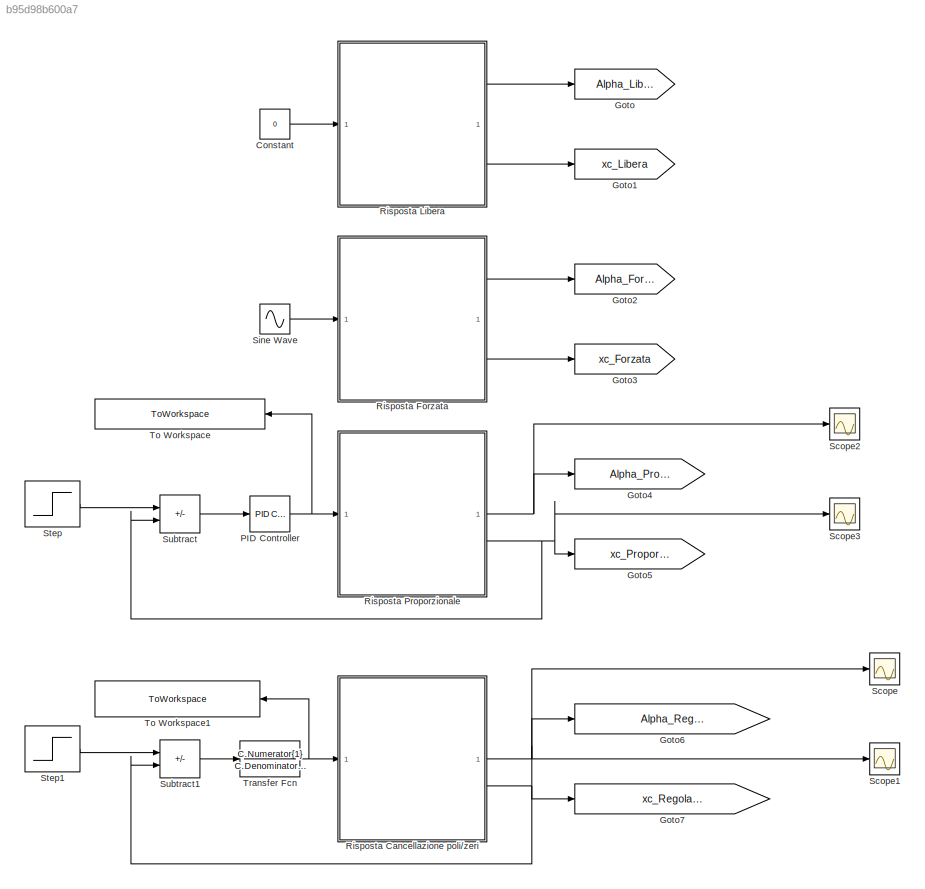
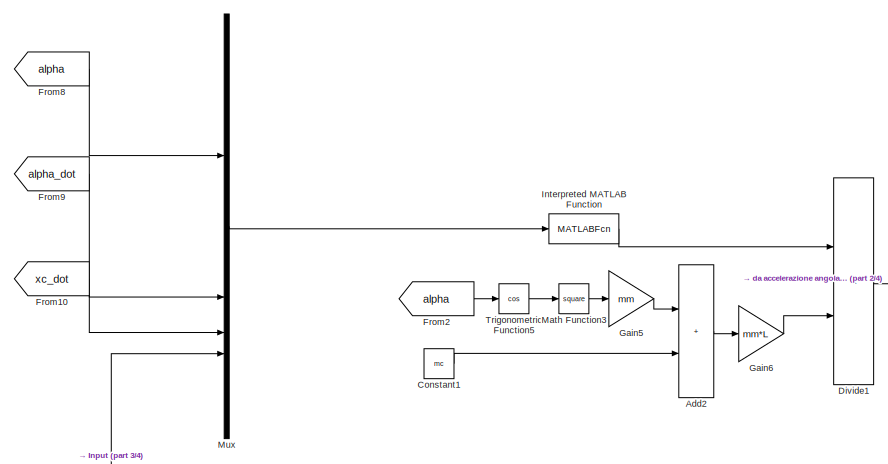
[diagram: Risposta Cancellazione poli/zeri - part 1/4, top center region]
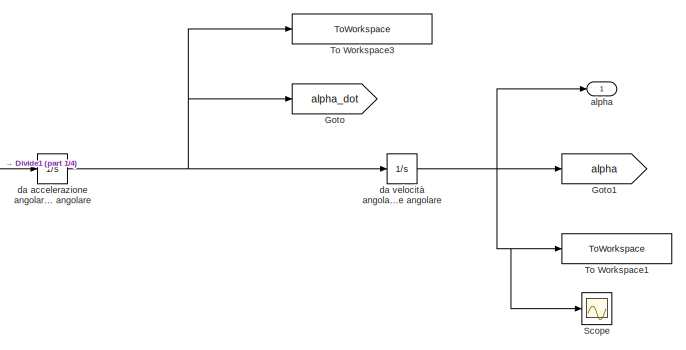
[diagram: Risposta Cancellazione poli/zeri - part 2/4, top right region]
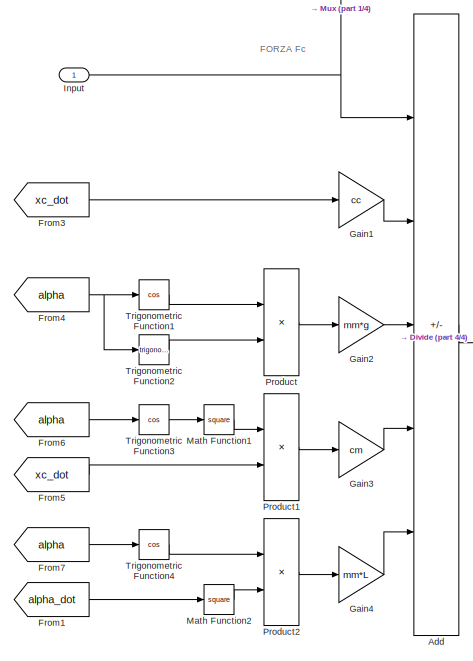
[diagram: Risposta Cancellazione poli/zeri - part 3/4, bottom left region]
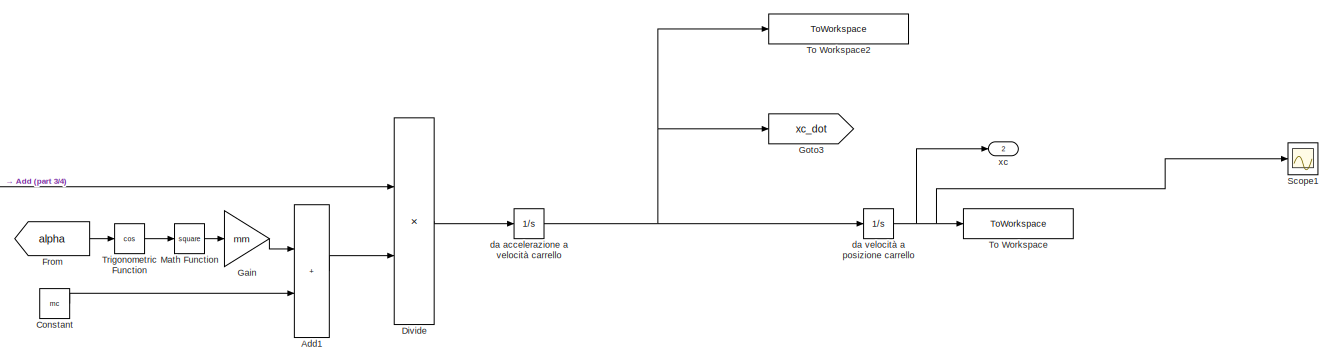
[diagram: Risposta Cancellazione poli/zeri - part 4/4, bottom center region]
MODEL slx_b95d98b600a7
KIND model
CONFIG AbsTol = auto
CONFIG EnableMultiTasking = on
CONFIG FixedStep = 1e-3
CONFIG MaxStep = auto
CONFIG MinStep = auto
CONFIG RelTol = 1e-3
CONFIG SampleTimeConstraint = Unconstrained
CONFIG SolverName = FixedStepAuto
CONFIG StartTime = 0
CONFIG StopTime = 30
BLOCK [Constant] Constant
  Value = 0
BLOCK [Goto] Goto
  GotoTag = Alpha_Libera
BLOCK [Goto] Goto1
  GotoTag = xc_Libera
BLOCK [Goto] Goto2
  GotoTag = Alpha_Forzata
BLOCK [Goto] Goto3
  GotoTag = xc_Forzata
BLOCK [Goto] Goto4
  GotoTag = Alpha_Proporzionale
BLOCK [Goto] Goto5
  GotoTag = xc_Proporzionale
BLOCK [Goto] Goto6
  GotoTag = Alpha_Regolatore_Dinamico
BLOCK [Goto] Goto7
  GotoTag = xc_Regolatore_Dinamico
BLOCK [Reference] PID Controller  REF=slpidlib/PID Controller
  LibrarySourceBlock = simulink/Continuous/PID Controller
  SourceBlock = slpidlib/PID Controller
  SourceType = PID 1dof
BLOCK [SubSystem] Risposta Cancellazione poli//zeri
BLOCK [Sum] Risposta Cancellazione poli//zeri/Add
  IconShape = rectangular
  Inputs = +-+-+
BLOCK [Sum] Risposta Cancellazione poli//zeri/Add1
  IconShape = rectangular
BLOCK [Sum] Risposta Cancellazione poli//zeri/Add2
  IconShape = rectangular
BLOCK [Constant] Risposta Cancellazione poli//zeri/Constant
  Value = mc
BLOCK [Constant] Risposta Cancellazione poli//zeri/Constant1
  Value = mc
BLOCK [Product] Risposta Cancellazione poli//zeri/Divide
  Inputs = */
BLOCK [Product] Risposta Cancellazione poli//zeri/Divide1
  Inputs = */
BLOCK [From] Risposta Cancellazione poli//zeri/From
  GotoTag = alpha
BLOCK [From] Risposta Cancellazione poli//zeri/From1
  GotoTag = alpha_dot
BLOCK [From] Risposta Cancellazione poli//zeri/From10
  GotoTag = xc_dot
BLOCK [From] Risposta Cancellazione poli//zeri/From2
  GotoTag = alpha
BLOCK [From] Risposta Cancellazione poli//zeri/From3
  GotoTag = xc_dot
BLOCK [From] Risposta Cancellazione poli//zeri/From4
  GotoTag = alpha
BLOCK [From] Risposta Cancellazione poli//zeri/From5
  GotoTag = xc_dot
BLOCK [From] Risposta Cancellazione poli//zeri/From6
  GotoTag = alpha
BLOCK [From] Risposta Cancellazione poli//zeri/From7
  GotoTag = alpha
BLOCK [From] Risposta Cancellazione poli//zeri/From8
  GotoTag = alpha
BLOCK [From] Risposta Cancellazione poli//zeri/From9
  GotoTag = alpha_dot
BLOCK [Gain] Risposta Cancellazione poli//zeri/Gain
  Gain = mm
BLOCK [Gain] Risposta Cancellazione poli//zeri/Gain1
  Gain = cc
BLOCK [Gain] Risposta Cancellazione poli//zeri/Gain2
  Gain = mm*g
BLOCK [Gain] Risposta Cancellazione poli//zeri/Gain3
  Gain = cm
BLOCK [Gain] Risposta Cancellazione poli//zeri/Gain4
  Gain = mm*L
BLOCK [Gain] Risposta Cancellazione poli//zeri/Gain5
  Gain = mm
BLOCK [Gain] Risposta Cancellazione poli//zeri/Gain6
  Gain = mm*L
BLOCK [Goto] Risposta Cancellazione poli//zeri/Goto
  GotoTag = alpha_dot
BLOCK [Goto] Risposta Cancellazione poli//zeri/Goto1
  GotoTag = alpha
BLOCK [Goto] Risposta Cancellazione poli//zeri/Goto3
  GotoTag = xc_dot
BLOCK [Inport] Risposta Cancellazione poli//zeri/Input
BLOCK [MATLABFcn] Risposta Cancellazione poli//zeri/Interpreted MATLAB Function
  MATLABFcn = mc*cm*sin(u(1))*u(3) - mm*cc*sin(u(1))*u(3) + (mm^2)*L*sin(u(1))*cos(u(1))*(u(2)^2) + mm*sin(u(1))*u(4) + (mm^2)*g*cos(u(1)) + mc*mm*g*cos(u(1)) - mc*cm*L*u(2) - mm*cm*L*u(2)*((cos(u(1)))^2)  <repeated x4 — deduplicated; at blocks: Interpreted MATLAB Function>
  OutputDimensions = 1
BLOCK [Math] Risposta Cancellazione poli//zeri/Math Function
  Operator = square
  SignedPower = on
BLOCK [Math] Risposta Cancellazione poli//zeri/Math Function1
  Operator = square
  SignedPower = on
BLOCK [Math] Risposta Cancellazione poli//zeri/Math Function2
  Operator = square
  SignedPower = on
BLOCK [Math] Risposta Cancellazione poli//zeri/Math Function3
  Operator = square
  SignedPower = on
BLOCK [Mux] Risposta Cancellazione poli//zeri/Mux
  DisplayOption = bar
BLOCK [Product] Risposta Cancellazione poli//zeri/Product
BLOCK [Product] Risposta Cancellazione poli//zeri/Product1
BLOCK [Product] Risposta Cancellazione poli//zeri/Product2
BLOCK [Scope] Risposta Cancellazione poli//zeri/Scope
  Floating = off
  NumInputPorts = 1
  ScopeSpecificationString = Simulink.scopes.TimeScopeBlockCfg('CurrentConfiguration', extmgr.ConfigurationSet(extmgr.Configuration('Core','General UI',true),extmgr.Configuration('Core','Source UI',true),extmgr.Configuration('Sources','WiredSimulink',true),extmgr.Configuration('Visuals','Time Domain',true,'SerializedDisplays',{struct('MinYLimReal','0.37443','MaxYLimReal','2.766','YLabelReal','','MinYLimMag','0.37443','MaxYLim...<+1406ch>  <repeated x4 — deduplicated; at blocks: Scope>
BLOCK [Scope] Risposta Cancellazione poli//zeri/Scope1
  Floating = off
  NumInputPorts = 1
  ScopeSpecificationString = Simulink.scopes.TimeScopeBlockCfg('CurrentConfiguration', extmgr.ConfigurationSet(extmgr.Configuration('Core','General UI',true),extmgr.Configuration('Core','Source UI',true),extmgr.Configuration('Sources','WiredSimulink',true,'DataLoggingVariableName','ScopeData1'),extmgr.Configuration('Visuals','Time Domain',true,'SerializedDisplays',{struct('MinYLimReal','-0.19058','MaxYLimReal','1.71524','YLab...<+1433ch>  <repeated x4 — deduplicated; at blocks: Scope1>
BLOCK [ToWorkspace] Risposta Cancellazione poli//zeri/To Workspace
  FixptAsFi = on
  MaxDataPoints = inf
  SampleTime = -1
  VariableName = xc_simulink_Dinamico
BLOCK [ToWorkspace] Risposta Cancellazione poli//zeri/To Workspace1
  FixptAsFi = on
  MaxDataPoints = inf
  SampleTime = -1
  VariableName = alpha_simulink_Dinamico
BLOCK [ToWorkspace] Risposta Cancellazione poli//zeri/To Workspace2
  FixptAsFi = on
  MaxDataPoints = inf
  SampleTime = -1
  VariableName = xc_dot_simulink_Dinamico
BLOCK [ToWorkspace] Risposta Cancellazione poli//zeri/To Workspace3
  FixptAsFi = on
  MaxDataPoints = inf
  SampleTime = -1
  VariableName = alpha_dot_simulink_Dinamico
BLOCK [Trigonometry] Risposta Cancellazione poli//zeri/Trigonometric Function
  Operator = cos
BLOCK [Trigonometry] Risposta Cancellazione poli//zeri/Trigonometric Function1
  Operator = cos
BLOCK [Trigonometry] Risposta Cancellazione poli//zeri/Trigonometric Function2
BLOCK [Trigonometry] Risposta Cancellazione poli//zeri/Trigonometric Function3
  Operator = cos
BLOCK [Trigonometry] Risposta Cancellazione poli//zeri/Trigonometric Function4
  Operator = cos
BLOCK [Trigonometry] Risposta Cancellazione poli//zeri/Trigonometric Function5
  Operator = cos
BLOCK [Outport] Risposta Cancellazione poli//zeri/alpha
BLOCK [Integrator] Risposta Cancellazione poli//zeri/da accelerazione a velocità carrello
  InitialCondition = xc_dot_0
BLOCK [Integrator] Risposta Cancellazione poli//zeri/da accelerazione angolare a velocità angolare
  InitialCondition = alpha_dot_0
BLOCK [Integrator] Risposta Cancellazione poli//zeri/da velocità a posizione carrello
  InitialCondition = xc_0
BLOCK [Integrator] Risposta Cancellazione poli//zeri/da velocità angolare a posizione angolare
  InitialCondition = alpha_0
BLOCK [Outport] Risposta Cancellazione poli//zeri/xc
  Port = 2
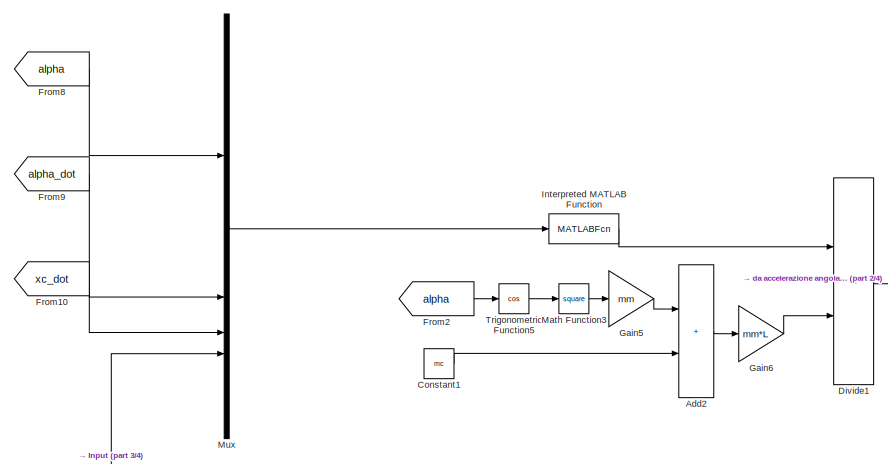
[diagram: Risposta Forzata - part 1/4, top center region]
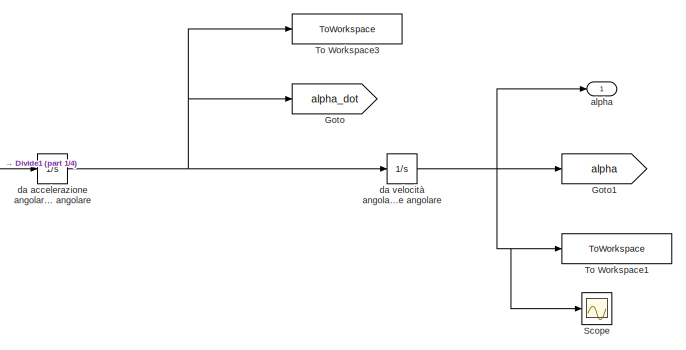
[diagram: Risposta Forzata - part 2/4, top right region]
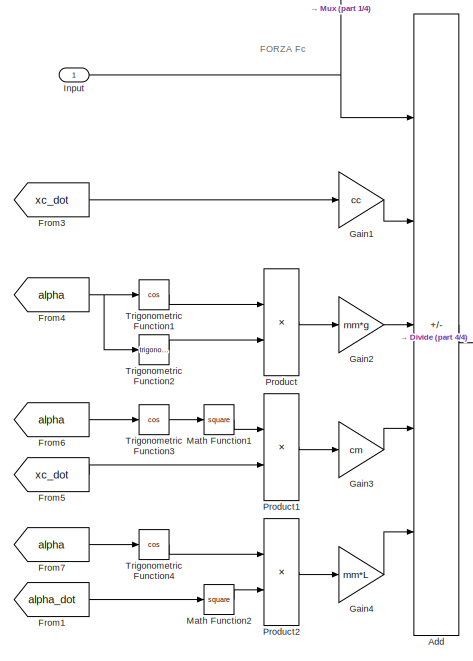
[diagram: Risposta Forzata - part 3/4, bottom left region]
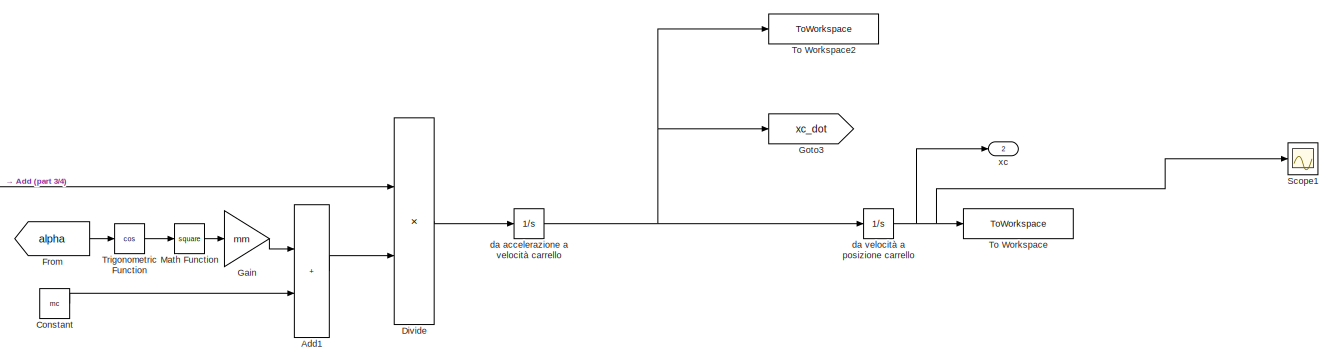
[diagram: Risposta Forzata - part 4/4, bottom center region]
BLOCK [SubSystem] Risposta Forzata
BLOCK [Sum] Risposta Forzata/Add
  IconShape = rectangular
  Inputs = +-+-+
BLOCK [Sum] Risposta Forzata/Add1
  IconShape = rectangular
BLOCK [Sum] Risposta Forzata/Add2
  IconShape = rectangular
BLOCK [Constant] Risposta Forzata/Constant
  Value = mc
BLOCK [Constant] Risposta Forzata/Constant1
  Value = mc
BLOCK [Product] Risposta Forzata/Divide
  Inputs = */
BLOCK [Product] Risposta Forzata/Divide1
  Inputs = */
BLOCK [From] Risposta Forzata/From
  GotoTag = alpha
BLOCK [From] Risposta Forzata/From1
  GotoTag = alpha_dot
BLOCK [From] Risposta Forzata/From10
  GotoTag = xc_dot
BLOCK [From] Risposta Forzata/From2
  GotoTag = alpha
BLOCK [From] Risposta Forzata/From3
  GotoTag = xc_dot
BLOCK [From] Risposta Forzata/From4
  GotoTag = alpha
BLOCK [From] Risposta Forzata/From5
  GotoTag = xc_dot
BLOCK [From] Risposta Forzata/From6
  GotoTag = alpha
BLOCK [From] Risposta Forzata/From7
  GotoTag = alpha
BLOCK [From] Risposta Forzata/From8
  GotoTag = alpha
BLOCK [From] Risposta Forzata/From9
  GotoTag = alpha_dot
BLOCK [Gain] Risposta Forzata/Gain
  Gain = mm
BLOCK [Gain] Risposta Forzata/Gain1
  Gain = cc
BLOCK [Gain] Risposta Forzata/Gain2
  Gain = mm*g
BLOCK [Gain] Risposta Forzata/Gain3
  Gain = cm
BLOCK [Gain] Risposta Forzata/Gain4
  Gain = mm*L
BLOCK [Gain] Risposta Forzata/Gain5
  Gain = mm
BLOCK [Gain] Risposta Forzata/Gain6
  Gain = mm*L
BLOCK [Goto] Risposta Forzata/Goto
  GotoTag = alpha_dot
BLOCK [Goto] Risposta Forzata/Goto1
  GotoTag = alpha
BLOCK [Goto] Risposta Forzata/Goto3
  GotoTag = xc_dot
BLOCK [Inport] Risposta Forzata/Input
BLOCK [MATLABFcn] Risposta Forzata/Interpreted MATLAB Function
  OutputDimensions = 1
BLOCK [Math] Risposta Forzata/Math Function
  Operator = square
  SignedPower = on
BLOCK [Math] Risposta Forzata/Math Function1
  Operator = square
  SignedPower = on
BLOCK [Math] Risposta Forzata/Math Function2
  Operator = square
  SignedPower = on
BLOCK [Math] Risposta Forzata/Math Function3
  Operator = square
  SignedPower = on
BLOCK [Mux] Risposta Forzata/Mux
  DisplayOption = bar
BLOCK [Product] Risposta Forzata/Product
BLOCK [Product] Risposta Forzata/Product1
BLOCK [Product] Risposta Forzata/Product2
BLOCK [Scope] Risposta Forzata/Scope
  Floating = off
  NumInputPorts = 1
BLOCK [Scope] Risposta Forzata/Scope1
  Floating = off
  NumInputPorts = 1
BLOCK [ToWorkspace] Risposta Forzata/To Workspace
  FixptAsFi = on
  MaxDataPoints = inf
  SampleTime = -1
  VariableName = xc_simulink_Forzata
BLOCK [ToWorkspace] Risposta Forzata/To Workspace1
  FixptAsFi = on
  MaxDataPoints = inf
  SampleTime = -1
  VariableName = alpha_simulink_Forzata
BLOCK [ToWorkspace] Risposta Forzata/To Workspace2
  FixptAsFi = on
  MaxDataPoints = inf
  SampleTime = -1
  VariableName = xc_dot_simulink_Forzata
BLOCK [ToWorkspace] Risposta Forzata/To Workspace3
  FixptAsFi = on
  MaxDataPoints = inf
  SampleTime = -1
  VariableName = alpha_dot_simulink_Forzata
BLOCK [Trigonometry] Risposta Forzata/Trigonometric Function
  Operator = cos
BLOCK [Trigonometry] Risposta Forzata/Trigonometric Function1
  Operator = cos
BLOCK [Trigonometry] Risposta Forzata/Trigonometric Function2
BLOCK [Trigonometry] Risposta Forzata/Trigonometric Function3
  Operator = cos
BLOCK [Trigonometry] Risposta Forzata/Trigonometric Function4
  Operator = cos
BLOCK [Trigonometry] Risposta Forzata/Trigonometric Function5
  Operator = cos
BLOCK [Outport] Risposta Forzata/alpha
BLOCK [Integrator] Risposta Forzata/da accelerazione a velocità carrello
  InitialCondition = xc_dot_0
BLOCK [Integrator] Risposta Forzata/da accelerazione angolare a velocità angolare
  InitialCondition = alpha_dot_0
BLOCK [Integrator] Risposta Forzata/da velocità a posizione carrello
  InitialCondition = xc_0
BLOCK [Integrator] Risposta Forzata/da velocità angolare a posizione angolare
  InitialCondition = alpha_0
BLOCK [Outport] Risposta Forzata/xc
  Port = 2
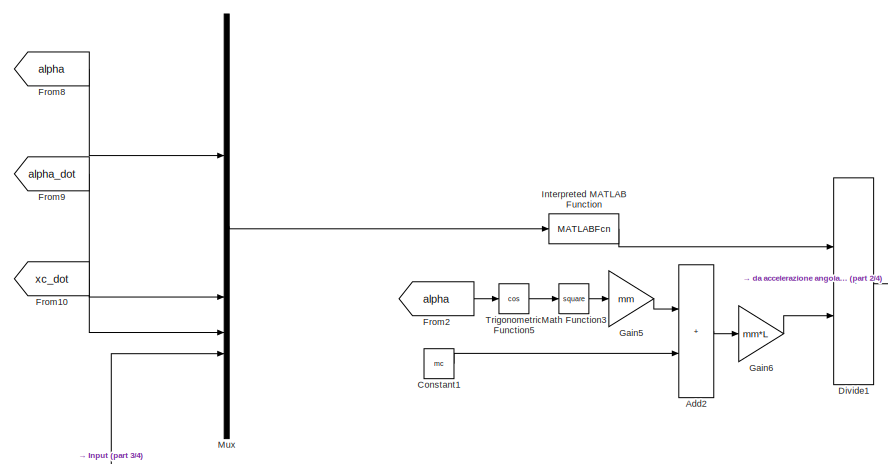
[diagram: Risposta Libera - part 1/4, top center region]
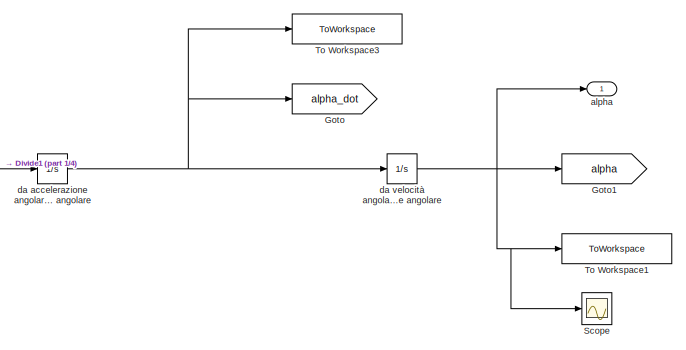
[diagram: Risposta Libera - part 2/4, top right region]
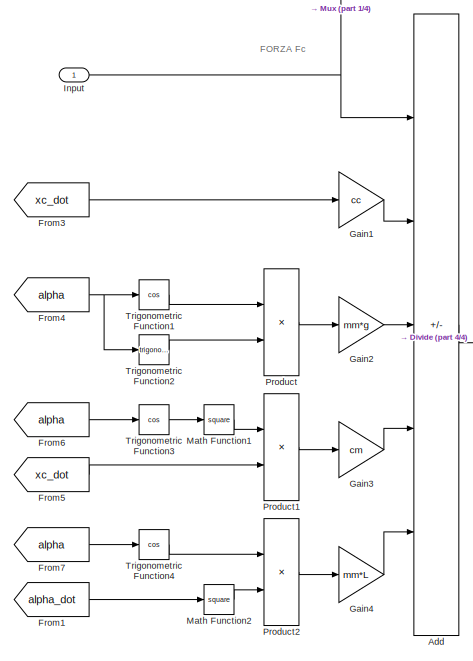
[diagram: Risposta Libera - part 3/4, bottom left region]
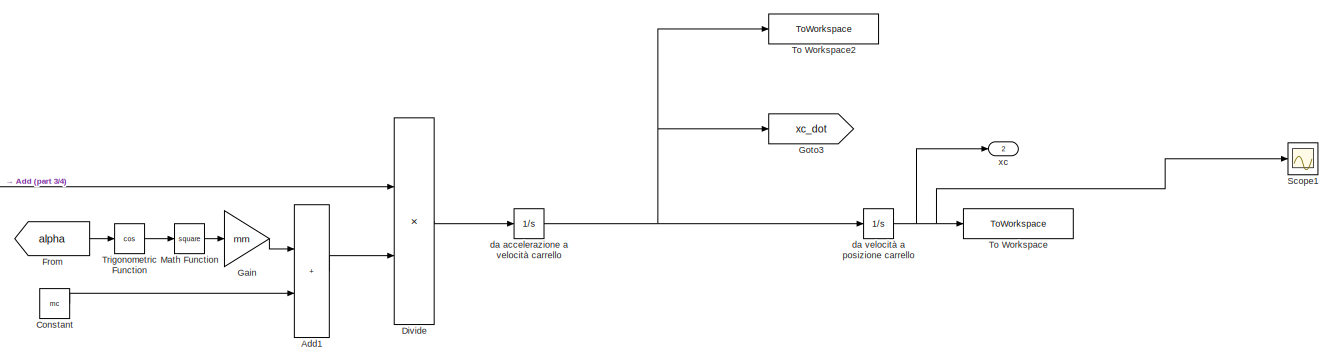
[diagram: Risposta Libera - part 4/4, bottom center region]
BLOCK [SubSystem] Risposta Libera
BLOCK [Sum] Risposta Libera/Add
  IconShape = rectangular
  Inputs = +-+-+
BLOCK [Sum] Risposta Libera/Add1
  IconShape = rectangular
BLOCK [Sum] Risposta Libera/Add2
  IconShape = rectangular
BLOCK [Constant] Risposta Libera/Constant
  Value = mc
BLOCK [Constant] Risposta Libera/Constant1
  Value = mc
BLOCK [Product] Risposta Libera/Divide
  Inputs = */
BLOCK [Product] Risposta Libera/Divide1
  Inputs = */
BLOCK [From] Risposta Libera/From
  GotoTag = alpha
BLOCK [From] Risposta Libera/From1
  GotoTag = alpha_dot
BLOCK [From] Risposta Libera/From10
  GotoTag = xc_dot
BLOCK [From] Risposta Libera/From2
  GotoTag = alpha
BLOCK [From] Risposta Libera/From3
  GotoTag = xc_dot
BLOCK [From] Risposta Libera/From4
  GotoTag = alpha
BLOCK [From] Risposta Libera/From5
  GotoTag = xc_dot
BLOCK [From] Risposta Libera/From6
  GotoTag = alpha
BLOCK [From] Risposta Libera/From7
  GotoTag = alpha
BLOCK [From] Risposta Libera/From8
  GotoTag = alpha
BLOCK [From] Risposta Libera/From9
  GotoTag = alpha_dot
BLOCK [Gain] Risposta Libera/Gain
  Gain = mm
BLOCK [Gain] Risposta Libera/Gain1
  Gain = cc
BLOCK [Gain] Risposta Libera/Gain2
  Gain = mm*g
BLOCK [Gain] Risposta Libera/Gain3
  Gain = cm
BLOCK [Gain] Risposta Libera/Gain4
  Gain = mm*L
BLOCK [Gain] Risposta Libera/Gain5
  Gain = mm
BLOCK [Gain] Risposta Libera/Gain6
  Gain = mm*L
BLOCK [Goto] Risposta Libera/Goto
  GotoTag = alpha_dot
BLOCK [Goto] Risposta Libera/Goto1
  GotoTag = alpha
BLOCK [Goto] Risposta Libera/Goto3
  GotoTag = xc_dot
BLOCK [Inport] Risposta Libera/Input
BLOCK [MATLABFcn] Risposta Libera/Interpreted MATLAB Function
  OutputDimensions = 1
BLOCK [Math] Risposta Libera/Math Function
  Operator = square
  SignedPower = on
BLOCK [Math] Risposta Libera/Math Function1
  Operator = square
  SignedPower = on
BLOCK [Math] Risposta Libera/Math Function2
  Operator = square
  SignedPower = on
BLOCK [Math] Risposta Libera/Math Function3
  Operator = square
  SignedPower = on
BLOCK [Mux] Risposta Libera/Mux
  DisplayOption = bar
BLOCK [Product] Risposta Libera/Product
BLOCK [Product] Risposta Libera/Product1
BLOCK [Product] Risposta Libera/Product2
BLOCK [Scope] Risposta Libera/Scope
  Floating = off
  NumInputPorts = 1
BLOCK [Scope] Risposta Libera/Scope1
  Floating = off
  NumInputPorts = 1
BLOCK [ToWorkspace] Risposta Libera/To Workspace
  FixptAsFi = on
  MaxDataPoints = inf
  SampleTime = -1
  VariableName = xc_simulink_libera
BLOCK [ToWorkspace] Risposta Libera/To Workspace1
  FixptAsFi = on
  MaxDataPoints = inf
  SampleTime = -1
  VariableName = alpha_simulink_libera
BLOCK [ToWorkspace] Risposta Libera/To Workspace2
  FixptAsFi = on
  MaxDataPoints = inf
  SampleTime = -1
  VariableName = xc_dot_simulink_libera
BLOCK [ToWorkspace] Risposta Libera/To Workspace3
  FixptAsFi = on
  MaxDataPoints = inf
  SampleTime = -1
  VariableName = alpha_dot_simulink_libera
BLOCK [Trigonometry] Risposta Libera/Trigonometric Function
  Operator = cos
BLOCK [Trigonometry] Risposta Libera/Trigonometric Function1
  Operator = cos
BLOCK [Trigonometry] Risposta Libera/Trigonometric Function2
BLOCK [Trigonometry] Risposta Libera/Trigonometric Function3
  Operator = cos
BLOCK [Trigonometry] Risposta Libera/Trigonometric Function4
  Operator = cos
BLOCK [Trigonometry] Risposta Libera/Trigonometric Function5
  Operator = cos
BLOCK [Outport] Risposta Libera/alpha
BLOCK [Integrator] Risposta Libera/da accelerazione a velocità carrello
  InitialCondition = xc_dot_0
BLOCK [Integrator] Risposta Libera/da accelerazione angolare a velocità angolare
  InitialCondition = alpha_dot_0
BLOCK [Integrator] Risposta Libera/da velocità a posizione carrello
  InitialCondition = xc_0
BLOCK [Integrator] Risposta Libera/da velocità angolare a posizione angolare
  InitialCondition = alpha_0
BLOCK [Outport] Risposta Libera/xc
  Port = 2
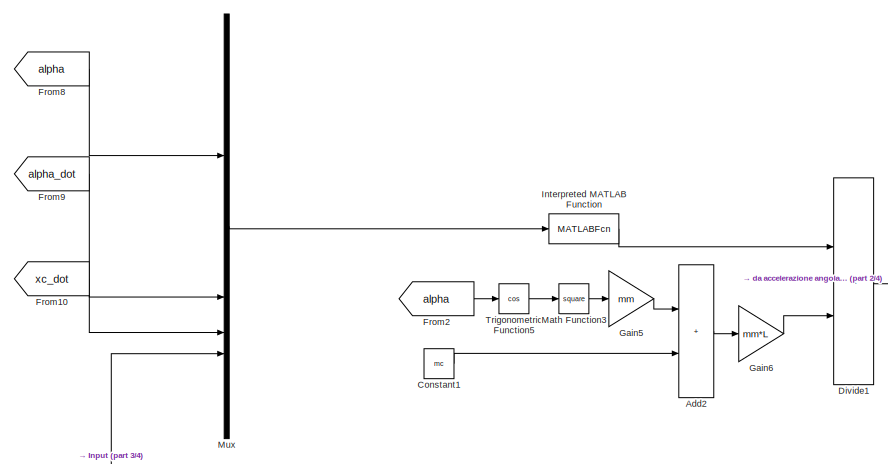
[diagram: Risposta Proporzionale - part 1/4, top center region]
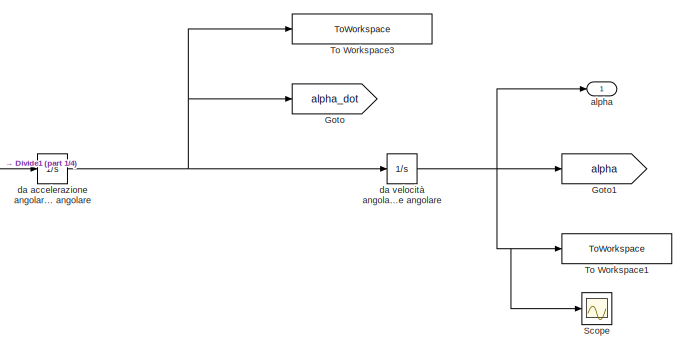
[diagram: Risposta Proporzionale - part 2/4, top right region]
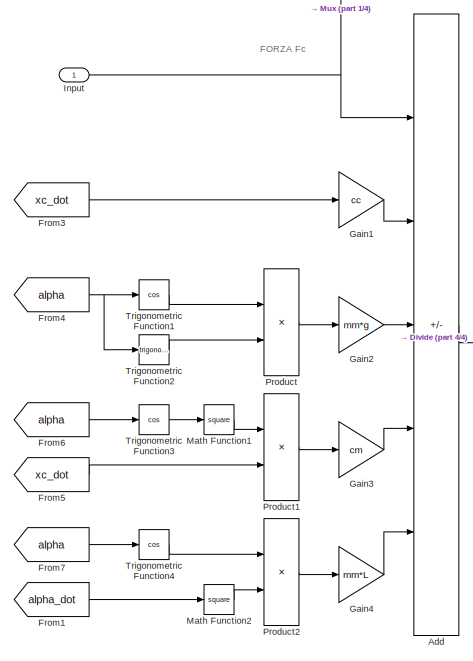
[diagram: Risposta Proporzionale - part 3/4, bottom left region]
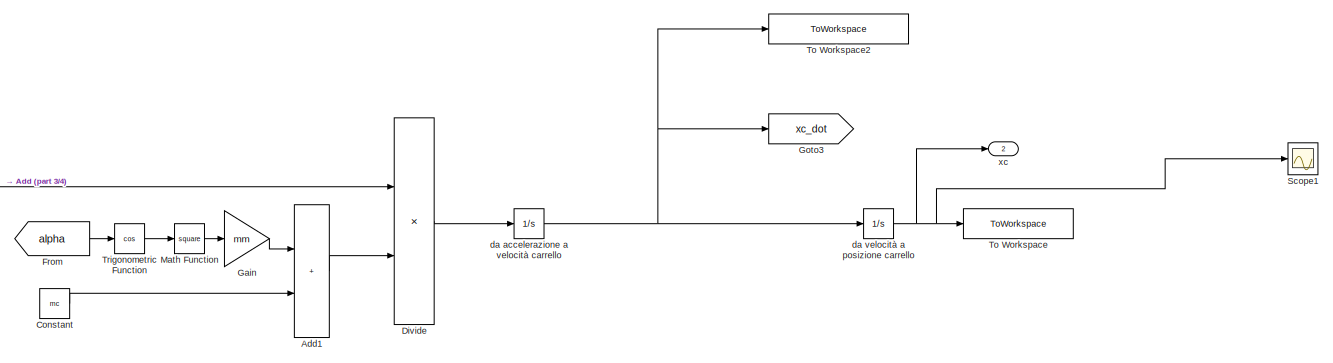
[diagram: Risposta Proporzionale - part 4/4, bottom center region]
BLOCK [SubSystem] Risposta Proporzionale
BLOCK [Sum] Risposta Proporzionale/Add
  IconShape = rectangular
  Inputs = +-+-+
BLOCK [Sum] Risposta Proporzionale/Add1
  IconShape = rectangular
BLOCK [Sum] Risposta Proporzionale/Add2
  IconShape = rectangular
BLOCK [Constant] Risposta Proporzionale/Constant
  Value = mc
BLOCK [Constant] Risposta Proporzionale/Constant1
  Value = mc
BLOCK [Product] Risposta Proporzionale/Divide
  Inputs = */
BLOCK [Product] Risposta Proporzionale/Divide1
  Inputs = */
BLOCK [From] Risposta Proporzionale/From
  GotoTag = alpha
BLOCK [From] Risposta Proporzionale/From1
  GotoTag = alpha_dot
BLOCK [From] Risposta Proporzionale/From10
  GotoTag = xc_dot
BLOCK [From] Risposta Proporzionale/From2
  GotoTag = alpha
BLOCK [From] Risposta Proporzionale/From3
  GotoTag = xc_dot
BLOCK [From] Risposta Proporzionale/From4
  GotoTag = alpha
BLOCK [From] Risposta Proporzionale/From5
  GotoTag = xc_dot
BLOCK [From] Risposta Proporzionale/From6
  GotoTag = alpha
BLOCK [From] Risposta Proporzionale/From7
  GotoTag = alpha
BLOCK [From] Risposta Proporzionale/From8
  GotoTag = alpha
BLOCK [From] Risposta Proporzionale/From9
  GotoTag = alpha_dot
BLOCK [Gain] Risposta Proporzionale/Gain
  Gain = mm
BLOCK [Gain] Risposta Proporzionale/Gain1
  Gain = cc
BLOCK [Gain] Risposta Proporzionale/Gain2
  Gain = mm*g
BLOCK [Gain] Risposta Proporzionale/Gain3
  Gain = cm
BLOCK [Gain] Risposta Proporzionale/Gain4
  Gain = mm*L
BLOCK [Gain] Risposta Proporzionale/Gain5
  Gain = mm
BLOCK [Gain] Risposta Proporzionale/Gain6
  Gain = mm*L
BLOCK [Goto] Risposta Proporzionale/Goto
  GotoTag = alpha_dot
BLOCK [Goto] Risposta Proporzionale/Goto1
  GotoTag = alpha
BLOCK [Goto] Risposta Proporzionale/Goto3
  GotoTag = xc_dot
BLOCK [Inport] Risposta Proporzionale/Input
BLOCK [MATLABFcn] Risposta Proporzionale/Interpreted MATLAB Function
  OutputDimensions = 1
BLOCK [Math] Risposta Proporzionale/Math Function
  Operator = square
  SignedPower = on
BLOCK [Math] Risposta Proporzionale/Math Function1
  Operator = square
  SignedPower = on
BLOCK [Math] Risposta Proporzionale/Math Function2
  Operator = square
  SignedPower = on
BLOCK [Math] Risposta Proporzionale/Math Function3
  Operator = square
  SignedPower = on
BLOCK [Mux] Risposta Proporzionale/Mux
  DisplayOption = bar
BLOCK [Product] Risposta Proporzionale/Product
BLOCK [Product] Risposta Proporzionale/Product1
BLOCK [Product] Risposta Proporzionale/Product2
BLOCK [Scope] Risposta Proporzionale/Scope
  Floating = off
  NumInputPorts = 1
BLOCK [Scope] Risposta Proporzionale/Scope1
  Floating = off
  NumInputPorts = 1
BLOCK [ToWorkspace] Risposta Proporzionale/To Workspace
  FixptAsFi = on
  MaxDataPoints = inf
  SampleTime = -1
  VariableName = xc_simulink_Proporzionale
BLOCK [ToWorkspace] Risposta Proporzionale/To Workspace1
  FixptAsFi = on
  MaxDataPoints = inf
  SampleTime = -1
  VariableName = alpha_simulink_Proporzionale
BLOCK [ToWorkspace] Risposta Proporzionale/To Workspace2
  FixptAsFi = on
  MaxDataPoints = inf
  SampleTime = -1
  VariableName = xc_dot_simulink_Proporzionale
BLOCK [ToWorkspace] Risposta Proporzionale/To Workspace3
  FixptAsFi = on
  MaxDataPoints = inf
  SampleTime = -1
  VariableName = alpha_dot_simulink_Propozionale
BLOCK [Trigonometry] Risposta Proporzionale/Trigonometric Function
  Operator = cos
BLOCK [Trigonometry] Risposta Proporzionale/Trigonometric Function1
  Operator = cos
BLOCK [Trigonometry] Risposta Proporzionale/Trigonometric Function2
BLOCK [Trigonometry] Risposta Proporzionale/Trigonometric Function3
  Operator = cos
BLOCK [Trigonometry] Risposta Proporzionale/Trigonometric Function4
  Operator = cos
BLOCK [Trigonometry] Risposta Proporzionale/Trigonometric Function5
  Operator = cos
BLOCK [Outport] Risposta Proporzionale/alpha
BLOCK [Integrator] Risposta Proporzionale/da accelerazione a velocità carrello
  InitialCondition = xc_dot_0
BLOCK [Integrator] Risposta Proporzionale/da accelerazione angolare a velocità angolare
  InitialCondition = alpha_dot_0
BLOCK [Integrator] Risposta Proporzionale/da velocità a posizione carrello
  InitialCondition = xc_0
BLOCK [Integrator] Risposta Proporzionale/da velocità angolare a posizione angolare
  InitialCondition = alpha_0
BLOCK [Outport] Risposta Proporzionale/xc
  Port = 2
BLOCK [Scope] Scope
  Floating = off
  NumInputPorts = 1
  ScopeSpecificationString = Simulink.scopes.TimeScopeBlockCfg('CurrentConfiguration', extmgr.ConfigurationSet(extmgr.Configuration('Core','General UI',true),extmgr.Configuration('Core','Source UI',true),extmgr.Configuration('Sources','WiredSimulink',true,'DataLoggingVariableName','ScopeData1'),extmgr.Configuration('Visuals','Time Domain',true),extmgr.Configuration('Tools','Plot Navigation',true),extmgr.Configuration('Tools',...<+40ch>
BLOCK [Scope] Scope1
  Floating = off
  NumInputPorts = 1
  ScopeSpecificationString = Simulink.scopes.TimeScopeBlockCfg('CurrentConfiguration', extmgr.ConfigurationSet(extmgr.Configuration('Core','General UI',true),extmgr.Configuration('Core','Source UI',true),extmgr.Configuration('Sources','WiredSimulink',true,'DataLoggingVariableName','ScopeData2'),extmgr.Configuration('Visuals','Time Domain',true),extmgr.Configuration('Tools','Plot Navigation',true),extmgr.Configuration('Tools',...<+40ch>
BLOCK [Scope] Scope2
  Floating = off
  NumInputPorts = 1
  ScopeSpecificationString = Simulink.scopes.TimeScopeBlockCfg('CurrentConfiguration', extmgr.ConfigurationSet(extmgr.Configuration('Core','General UI',true),extmgr.Configuration('Core','Source UI',true),extmgr.Configuration('Sources','WiredSimulink',true,'DataLoggingVariableName','ScopeData3'),extmgr.Configuration('Visuals','Time Domain',true),extmgr.Configuration('Tools','Plot Navigation',true),extmgr.Configuration('Tools',...<+40ch>
BLOCK [Scope] Scope3
  Floating = off
  NumInputPorts = 1
  ScopeSpecificationString = Simulink.scopes.TimeScopeBlockCfg('CurrentConfiguration', extmgr.ConfigurationSet(extmgr.Configuration('Core','General UI',true),extmgr.Configuration('Core','Source UI',true),extmgr.Configuration('Sources','WiredSimulink',true,'DataLoggingVariableName','ScopeData4'),extmgr.Configuration('Visuals','Time Domain',true),extmgr.Configuration('Tools','Plot Navigation',true),extmgr.Configuration('Tools',...<+40ch>
BLOCK [Sin] Sine Wave
  Amplitude = 1e4
  Frequency = 2
  SampleTime = 0
BLOCK [Step] Step
  SampleTime = 0
  Time = 15
BLOCK [Step] Step1
  SampleTime = 0
  Time = 15
BLOCK [Sum] Subtract
  IconShape = rectangular
  Inputs = +-
BLOCK [Sum] Subtract1
  IconShape = rectangular
  Inputs = +-
BLOCK [ToWorkspace] To Workspace
  FixptAsFi = on
  MaxDataPoints = inf
  NameLocation = top
  SampleTime = -1
  VariableName = Azione_controllo_simulink_Proporzionale
BLOCK [ToWorkspace] To Workspace1
  FixptAsFi = on
  MaxDataPoints = inf
  NameLocation = top
  SampleTime = -1
  VariableName = Azione_controllo_simulink_Dinamico
BLOCK [TransferFcn] Transfer Fcn
  Denominator = C.Denominator{1}
  Numerator = C.Numerator{1}
ANNOTATION Risposta Cancellazione poli//zeri: FORZA Fc
ANNOTATION Risposta Forzata: FORZA Fc
ANNOTATION Risposta Libera: FORZA Fc
ANNOTATION Risposta Proporzionale: FORZA Fc
LINE Constant:1 -> Risposta Libera:1
NET PID Controller:1 -> Risposta Proporzionale:1, To Workspace:1
LINE Risposta Cancellazione poli//zeri/Add1:1 -> Risposta Cancellazione poli//zeri/Divide:2
LINE Risposta Cancellazione poli//zeri/Add2:1 -> Risposta Cancellazione poli//zeri/Gain6:1
LINE Risposta Cancellazione poli//zeri/Add:1 -> Risposta Cancellazione poli//zeri/Divide:1
LINE Risposta Cancellazione poli//zeri/Constant1:1 -> Risposta Cancellazione poli//zeri/Add2:2
LINE Risposta Cancellazione poli//zeri/Constant:1 -> Risposta Cancellazione poli//zeri/Add1:2
LINE Risposta Cancellazione poli//zeri/Divide1:1 -> Risposta Cancellazione poli//zeri/da accelerazione angolare a velocità angolare:1
LINE Risposta Cancellazione poli//zeri/Divide:1 -> Risposta Cancellazione poli//zeri/da accelerazione a velocità carrello:1
LINE Risposta Cancellazione poli//zeri/From10:1 -> Risposta Cancellazione poli//zeri/Mux:3
LINE Risposta Cancellazione poli//zeri/From1:1 -> Risposta Cancellazione poli//zeri/Math Function2:1
LINE Risposta Cancellazione poli//zeri/From2:1 -> Risposta Cancellazione poli//zeri/Trigonometric Function5:1
LINE Risposta Cancellazione poli//zeri/From3:1 -> Risposta Cancellazione poli//zeri/Gain1:1
NET Risposta Cancellazione poli//zeri/From4:1 -> Risposta Cancellazione poli//zeri/Trigonometric Function1:1, Risposta Cancellazione poli//zeri/Trigonometric Function2:1
LINE Risposta Cancellazione poli//zeri/From5:1 -> Risposta Cancellazione poli//zeri/Product1:2
LINE Risposta Cancellazione poli//zeri/From6:1 -> Risposta Cancellazione poli//zeri/Trigonometric Function3:1
LINE Risposta Cancellazione poli//zeri/From7:1 -> Risposta Cancellazione poli//zeri/Trigonometric Function4:1
LINE Risposta Cancellazione poli//zeri/From8:1 -> Risposta Cancellazione poli//zeri/Mux:1
LINE Risposta Cancellazione poli//zeri/From9:1 -> Risposta Cancellazione poli//zeri/Mux:2
LINE Risposta Cancellazione poli//zeri/From:1 -> Risposta Cancellazione poli//zeri/Trigonometric Function:1
LINE Risposta Cancellazione poli//zeri/Gain1:1 -> Risposta Cancellazione poli//zeri/Add:2
LINE Risposta Cancellazione poli//zeri/Gain2:1 -> Risposta Cancellazione poli//zeri/Add:3
LINE Risposta Cancellazione poli//zeri/Gain3:1 -> Risposta Cancellazione poli//zeri/Add:4
LINE Risposta Cancellazione poli//zeri/Gain4:1 -> Risposta Cancellazione poli//zeri/Add:5
LINE Risposta Cancellazione poli//zeri/Gain5:1 -> Risposta Cancellazione poli//zeri/Add2:1
LINE Risposta Cancellazione poli//zeri/Gain6:1 -> Risposta Cancellazione poli//zeri/Divide1:2
LINE Risposta Cancellazione poli//zeri/Gain:1 -> Risposta Cancellazione poli//zeri/Add1:1
NET Risposta Cancellazione poli//zeri/Input:1 -> Risposta Cancellazione poli//zeri/Add:1, Risposta Cancellazione poli//zeri/Mux:4
LINE Risposta Cancellazione poli//zeri/Interpreted MATLAB Function:1 -> Risposta Cancellazione poli//zeri/Divide1:1
LINE Risposta Cancellazione poli//zeri/Math Function1:1 -> Risposta Cancellazione poli//zeri/Product1:1
LINE Risposta Cancellazione poli//zeri/Math Function2:1 -> Risposta Cancellazione poli//zeri/Product2:2
LINE Risposta Cancellazione poli//zeri/Math Function3:1 -> Risposta Cancellazione poli//zeri/Gain5:1
LINE Risposta Cancellazione poli//zeri/Math Function:1 -> Risposta Cancellazione poli//zeri/Gain:1
LINE Risposta Cancellazione poli//zeri/Mux:1 -> Risposta Cancellazione poli//zeri/Interpreted MATLAB Function:1
LINE Risposta Cancellazione poli//zeri/Product1:1 -> Risposta Cancellazione poli//zeri/Gain3:1
LINE Risposta Cancellazione poli//zeri/Product2:1 -> Risposta Cancellazione poli//zeri/Gain4:1
LINE Risposta Cancellazione poli//zeri/Product:1 -> Risposta Cancellazione poli//zeri/Gain2:1
LINE Risposta Cancellazione poli//zeri/Trigonometric Function1:1 -> Risposta Cancellazione poli//zeri/Product:1
LINE Risposta Cancellazione poli//zeri/Trigonometric Function2:1 -> Risposta Cancellazione poli//zeri/Product:2
LINE Risposta Cancellazione poli//zeri/Trigonometric Function3:1 -> Risposta Cancellazione poli//zeri/Math Function1:1
LINE Risposta Cancellazione poli//zeri/Trigonometric Function4:1 -> Risposta Cancellazione poli//zeri/Product2:1
LINE Risposta Cancellazione poli//zeri/Trigonometric Function5:1 -> Risposta Cancellazione poli//zeri/Math Function3:1
LINE Risposta Cancellazione poli//zeri/Trigonometric Function:1 -> Risposta Cancellazione poli//zeri/Math Function:1
NET Risposta Cancellazione poli//zeri/da accelerazione a velocità carrello:1 -> Risposta Cancellazione poli//zeri/Goto3:1, Risposta Cancellazione poli//zeri/To Workspace2:1, Risposta Cancellazione poli//zeri/da velocità a posizione carrello:1
NET Risposta Cancellazione poli//zeri/da accelerazione angolare a velocità angolare:1 -> Risposta Cancellazione poli//zeri/Goto:1, Risposta Cancellazione poli//zeri/To Workspace3:1, Risposta Cancellazione poli//zeri/da velocità angolare a posizione angolare:1
NET Risposta Cancellazione poli//zeri/da velocità a posizione carrello:1 -> Risposta Cancellazione poli//zeri/Scope1:1, Risposta Cancellazione poli//zeri/To Workspace:1, Risposta Cancellazione poli//zeri/xc:1
NET Risposta Cancellazione poli//zeri/da velocità angolare a posizione angolare:1 -> Risposta Cancellazione poli//zeri/Goto1:1, Risposta Cancellazione poli//zeri/Scope:1, Risposta Cancellazione poli//zeri/To Workspace1:1, Risposta Cancellazione poli//zeri/alpha:1
NET Risposta Cancellazione poli//zeri:1 -> Goto6:1, Scope:1
NET Risposta Cancellazione poli//zeri:2 -> Goto7:1, Scope1:1, Subtract1:2
LINE Risposta Forzata/Add1:1 -> Risposta Forzata/Divide:2
LINE Risposta Forzata/Add2:1 -> Risposta Forzata/Gain6:1
LINE Risposta Forzata/Add:1 -> Risposta Forzata/Divide:1
LINE Risposta Forzata/Constant1:1 -> Risposta Forzata/Add2:2
LINE Risposta Forzata/Constant:1 -> Risposta Forzata/Add1:2
LINE Risposta Forzata/Divide1:1 -> Risposta Forzata/da accelerazione angolare a velocità angolare:1
LINE Risposta Forzata/Divide:1 -> Risposta Forzata/da accelerazione a velocità carrello:1
LINE Risposta Forzata/From10:1 -> Risposta Forzata/Mux:3
LINE Risposta Forzata/From1:1 -> Risposta Forzata/Math Function2:1
LINE Risposta Forzata/From2:1 -> Risposta Forzata/Trigonometric Function5:1
LINE Risposta Forzata/From3:1 -> Risposta Forzata/Gain1:1
NET Risposta Forzata/From4:1 -> Risposta Forzata/Trigonometric Function1:1, Risposta Forzata/Trigonometric Function2:1
LINE Risposta Forzata/From5:1 -> Risposta Forzata/Product1:2
LINE Risposta Forzata/From6:1 -> Risposta Forzata/Trigonometric Function3:1
LINE Risposta Forzata/From7:1 -> Risposta Forzata/Trigonometric Function4:1
LINE Risposta Forzata/From8:1 -> Risposta Forzata/Mux:1
LINE Risposta Forzata/From9:1 -> Risposta Forzata/Mux:2
LINE Risposta Forzata/From:1 -> Risposta Forzata/Trigonometric Function:1
LINE Risposta Forzata/Gain1:1 -> Risposta Forzata/Add:2
LINE Risposta Forzata/Gain2:1 -> Risposta Forzata/Add:3
LINE Risposta Forzata/Gain3:1 -> Risposta Forzata/Add:4
LINE Risposta Forzata/Gain4:1 -> Risposta Forzata/Add:5
LINE Risposta Forzata/Gain5:1 -> Risposta Forzata/Add2:1
LINE Risposta Forzata/Gain6:1 -> Risposta Forzata/Divide1:2
LINE Risposta Forzata/Gain:1 -> Risposta Forzata/Add1:1
NET Risposta Forzata/Input:1 -> Risposta Forzata/Add:1, Risposta Forzata/Mux:4
LINE Risposta Forzata/Interpreted MATLAB Function:1 -> Risposta Forzata/Divide1:1
LINE Risposta Forzata/Math Function1:1 -> Risposta Forzata/Product1:1
LINE Risposta Forzata/Math Function2:1 -> Risposta Forzata/Product2:2
LINE Risposta Forzata/Math Function3:1 -> Risposta Forzata/Gain5:1
LINE Risposta Forzata/Math Function:1 -> Risposta Forzata/Gain:1
LINE Risposta Forzata/Mux:1 -> Risposta Forzata/Interpreted MATLAB Function:1
LINE Risposta Forzata/Product1:1 -> Risposta Forzata/Gain3:1
LINE Risposta Forzata/Product2:1 -> Risposta Forzata/Gain4:1
LINE Risposta Forzata/Product:1 -> Risposta Forzata/Gain2:1
LINE Risposta Forzata/Trigonometric Function1:1 -> Risposta Forzata/Product:1
LINE Risposta Forzata/Trigonometric Function2:1 -> Risposta Forzata/Product:2
LINE Risposta Forzata/Trigonometric Function3:1 -> Risposta Forzata/Math Function1:1
LINE Risposta Forzata/Trigonometric Function4:1 -> Risposta Forzata/Product2:1
LINE Risposta Forzata/Trigonometric Function5:1 -> Risposta Forzata/Math Function3:1
LINE Risposta Forzata/Trigonometric Function:1 -> Risposta Forzata/Math Function:1
NET Risposta Forzata/da accelerazione a velocità carrello:1 -> Risposta Forzata/Goto3:1, Risposta Forzata/To Workspace2:1, Risposta Forzata/da velocità a posizione carrello:1
NET Risposta Forzata/da accelerazione angolare a velocità angolare:1 -> Risposta Forzata/Goto:1, Risposta Forzata/To Workspace3:1, Risposta Forzata/da velocità angolare a posizione angolare:1
NET Risposta Forzata/da velocità a posizione carrello:1 -> Risposta Forzata/Scope1:1, Risposta Forzata/To Workspace:1, Risposta Forzata/xc:1
NET Risposta Forzata/da velocità angolare a posizione angolare:1 -> Risposta Forzata/Goto1:1, Risposta Forzata/Scope:1, Risposta Forzata/To Workspace1:1, Risposta Forzata/alpha:1
LINE Risposta Forzata:1 -> Goto2:1
LINE Risposta Forzata:2 -> Goto3:1
LINE Risposta Libera/Add1:1 -> Risposta Libera/Divide:2
LINE Risposta Libera/Add2:1 -> Risposta Libera/Gain6:1
LINE Risposta Libera/Add:1 -> Risposta Libera/Divide:1
LINE Risposta Libera/Constant1:1 -> Risposta Libera/Add2:2
LINE Risposta Libera/Constant:1 -> Risposta Libera/Add1:2
LINE Risposta Libera/Divide1:1 -> Risposta Libera/da accelerazione angolare a velocità angolare:1
LINE Risposta Libera/Divide:1 -> Risposta Libera/da accelerazione a velocità carrello:1
LINE Risposta Libera/From10:1 -> Risposta Libera/Mux:3
LINE Risposta Libera/From1:1 -> Risposta Libera/Math Function2:1
LINE Risposta Libera/From2:1 -> Risposta Libera/Trigonometric Function5:1
LINE Risposta Libera/From3:1 -> Risposta Libera/Gain1:1
NET Risposta Libera/From4:1 -> Risposta Libera/Trigonometric Function1:1, Risposta Libera/Trigonometric Function2:1
LINE Risposta Libera/From5:1 -> Risposta Libera/Product1:2
LINE Risposta Libera/From6:1 -> Risposta Libera/Trigonometric Function3:1
LINE Risposta Libera/From7:1 -> Risposta Libera/Trigonometric Function4:1
LINE Risposta Libera/From8:1 -> Risposta Libera/Mux:1
LINE Risposta Libera/From9:1 -> Risposta Libera/Mux:2
LINE Risposta Libera/From:1 -> Risposta Libera/Trigonometric Function:1
LINE Risposta Libera/Gain1:1 -> Risposta Libera/Add:2
LINE Risposta Libera/Gain2:1 -> Risposta Libera/Add:3
LINE Risposta Libera/Gain3:1 -> Risposta Libera/Add:4
LINE Risposta Libera/Gain4:1 -> Risposta Libera/Add:5
LINE Risposta Libera/Gain5:1 -> Risposta Libera/Add2:1
LINE Risposta Libera/Gain6:1 -> Risposta Libera/Divide1:2
LINE Risposta Libera/Gain:1 -> Risposta Libera/Add1:1
NET Risposta Libera/Input:1 -> Risposta Libera/Add:1, Risposta Libera/Mux:4
LINE Risposta Libera/Interpreted MATLAB Function:1 -> Risposta Libera/Divide1:1
LINE Risposta Libera/Math Function1:1 -> Risposta Libera/Product1:1
LINE Risposta Libera/Math Function2:1 -> Risposta Libera/Product2:2
LINE Risposta Libera/Math Function3:1 -> Risposta Libera/Gain5:1
LINE Risposta Libera/Math Function:1 -> Risposta Libera/Gain:1
LINE Risposta Libera/Mux:1 -> Risposta Libera/Interpreted MATLAB Function:1
LINE Risposta Libera/Product1:1 -> Risposta Libera/Gain3:1
LINE Risposta Libera/Product2:1 -> Risposta Libera/Gain4:1
LINE Risposta Libera/Product:1 -> Risposta Libera/Gain2:1
LINE Risposta Libera/Trigonometric Function1:1 -> Risposta Libera/Product:1
LINE Risposta Libera/Trigonometric Function2:1 -> Risposta Libera/Product:2
LINE Risposta Libera/Trigonometric Function3:1 -> Risposta Libera/Math Function1:1
LINE Risposta Libera/Trigonometric Function4:1 -> Risposta Libera/Product2:1
LINE Risposta Libera/Trigonometric Function5:1 -> Risposta Libera/Math Function3:1
LINE Risposta Libera/Trigonometric Function:1 -> Risposta Libera/Math Function:1
NET Risposta Libera/da accelerazione a velocità carrello:1 -> Risposta Libera/Goto3:1, Risposta Libera/To Workspace2:1, Risposta Libera/da velocità a posizione carrello:1
NET Risposta Libera/da accelerazione angolare a velocità angolare:1 -> Risposta Libera/Goto:1, Risposta Libera/To Workspace3:1, Risposta Libera/da velocità angolare a posizione angolare:1
NET Risposta Libera/da velocità a posizione carrello:1 -> Risposta Libera/Scope1:1, Risposta Libera/To Workspace:1, Risposta Libera/xc:1
NET Risposta Libera/da velocità angolare a posizione angolare:1 -> Risposta Libera/Goto1:1, Risposta Libera/Scope:1, Risposta Libera/To Workspace1:1, Risposta Libera/alpha:1
LINE Risposta Libera:1 -> Goto:1
LINE Risposta Libera:2 -> Goto1:1
LINE Risposta Proporzionale/Add1:1 -> Risposta Proporzionale/Divide:2
LINE Risposta Proporzionale/Add2:1 -> Risposta Proporzionale/Gain6:1
LINE Risposta Proporzionale/Add:1 -> Risposta Proporzionale/Divide:1
LINE Risposta Proporzionale/Constant1:1 -> Risposta Proporzionale/Add2:2
LINE Risposta Proporzionale/Constant:1 -> Risposta Proporzionale/Add1:2
LINE Risposta Proporzionale/Divide1:1 -> Risposta Proporzionale/da accelerazione angolare a velocità angolare:1
LINE Risposta Proporzionale/Divide:1 -> Risposta Proporzionale/da accelerazione a velocità carrello:1
LINE Risposta Proporzionale/From10:1 -> Risposta Proporzionale/Mux:3
LINE Risposta Proporzionale/From1:1 -> Risposta Proporzionale/Math Function2:1
LINE Risposta Proporzionale/From2:1 -> Risposta Proporzionale/Trigonometric Function5:1
LINE Risposta Proporzionale/From3:1 -> Risposta Proporzionale/Gain1:1
NET Risposta Proporzionale/From4:1 -> Risposta Proporzionale/Trigonometric Function1:1, Risposta Proporzionale/Trigonometric Function2:1
LINE Risposta Proporzionale/From5:1 -> Risposta Proporzionale/Product1:2
LINE Risposta Proporzionale/From6:1 -> Risposta Proporzionale/Trigonometric Function3:1
LINE Risposta Proporzionale/From7:1 -> Risposta Proporzionale/Trigonometric Function4:1
LINE Risposta Proporzionale/From8:1 -> Risposta Proporzionale/Mux:1
LINE Risposta Proporzionale/From9:1 -> Risposta Proporzionale/Mux:2
LINE Risposta Proporzionale/From:1 -> Risposta Proporzionale/Trigonometric Function:1
LINE Risposta Proporzionale/Gain1:1 -> Risposta Proporzionale/Add:2
LINE Risposta Proporzionale/Gain2:1 -> Risposta Proporzionale/Add:3
LINE Risposta Proporzionale/Gain3:1 -> Risposta Proporzionale/Add:4
LINE Risposta Proporzionale/Gain4:1 -> Risposta Proporzionale/Add:5
LINE Risposta Proporzionale/Gain5:1 -> Risposta Proporzionale/Add2:1
LINE Risposta Proporzionale/Gain6:1 -> Risposta Proporzionale/Divide1:2
LINE Risposta Proporzionale/Gain:1 -> Risposta Proporzionale/Add1:1
NET Risposta Proporzionale/Input:1 -> Risposta Proporzionale/Add:1, Risposta Proporzionale/Mux:4
LINE Risposta Proporzionale/Interpreted MATLAB Function:1 -> Risposta Proporzionale/Divide1:1
LINE Risposta Proporzionale/Math Function1:1 -> Risposta Proporzionale/Product1:1
LINE Risposta Proporzionale/Math Function2:1 -> Risposta Proporzionale/Product2:2
LINE Risposta Proporzionale/Math Function3:1 -> Risposta Proporzionale/Gain5:1
LINE Risposta Proporzionale/Math Function:1 -> Risposta Proporzionale/Gain:1
LINE Risposta Proporzionale/Mux:1 -> Risposta Proporzionale/Interpreted MATLAB Function:1
LINE Risposta Proporzionale/Product1:1 -> Risposta Proporzionale/Gain3:1
LINE Risposta Proporzionale/Product2:1 -> Risposta Proporzionale/Gain4:1
LINE Risposta Proporzionale/Product:1 -> Risposta Proporzionale/Gain2:1
LINE Risposta Proporzionale/Trigonometric Function1:1 -> Risposta Proporzionale/Product:1
LINE Risposta Proporzionale/Trigonometric Function2:1 -> Risposta Proporzionale/Product:2
LINE Risposta Proporzionale/Trigonometric Function3:1 -> Risposta Proporzionale/Math Function1:1
LINE Risposta Proporzionale/Trigonometric Function4:1 -> Risposta Proporzionale/Product2:1
LINE Risposta Proporzionale/Trigonometric Function5:1 -> Risposta Proporzionale/Math Function3:1
LINE Risposta Proporzionale/Trigonometric Function:1 -> Risposta Proporzionale/Math Function:1
NET Risposta Proporzionale/da accelerazione a velocità carrello:1 -> Risposta Proporzionale/Goto3:1, Risposta Proporzionale/To Workspace2:1, Risposta Proporzionale/da velocità a posizione carrello:1
NET Risposta Proporzionale/da accelerazione angolare a velocità angolare:1 -> Risposta Proporzionale/Goto:1, Risposta Proporzionale/To Workspace3:1, Risposta Proporzionale/da velocità angolare a posizione angolare:1
NET Risposta Proporzionale/da velocità a posizione carrello:1 -> Risposta Proporzionale/Scope1:1, Risposta Proporzionale/To Workspace:1, Risposta Proporzionale/xc:1
NET Risposta Proporzionale/da velocità angolare a posizione angolare:1 -> Risposta Proporzionale/Goto1:1, Risposta Proporzionale/Scope:1, Risposta Proporzionale/To Workspace1:1, Risposta Proporzionale/alpha:1
NET Risposta Proporzionale:1 -> Goto4:1, Scope2:1
NET Risposta Proporzionale:2 -> Goto5:1, Scope3:1, Subtract:2
LINE Sine Wave:1 -> Risposta Forzata:1
LINE Step1:1 -> Subtract1:1
LINE Step:1 -> Subtract:1
LINE Subtract1:1 -> Transfer Fcn:1
LINE Subtract:1 -> PID Controller:1
NET Transfer Fcn:1 -> Risposta Cancellazione poli//zeri:1, To Workspace1:1
note: NET lines group one-source signal fan-out (src -> all destinations, sorted); 1:1 wires keep LINE
